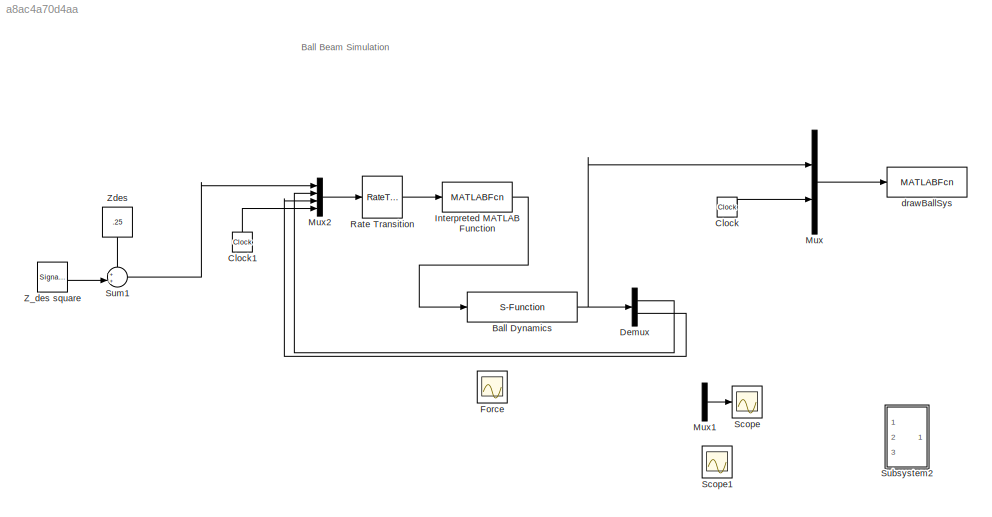
MODEL slx_a8ac4a70d4aa
KIND model
CONFIG AbsTol = auto
CONFIG EnableMultiTasking = on
CONFIG FixedStep = auto
CONFIG InitFcn = param
CONFIG MaxStep = auto
CONFIG MinStep = auto
CONFIG RelTol = 1e-3
CONFIG SampleTimeConstraint = Unconstrained
CONFIG Solver = ode45
CONFIG SolverName = ode45
CONFIG StartTime = 0.0
CONFIG StopTime = 1000
BLOCK [S-Function] Ball Dynamics
  EnableBusSupport = off
  FunctionName = ball_dynamics
  Parameters = P
  Ports = [1, 1]
  SFcnIsStateOwnerBlock = off
  SFunctionDeploymentMode = off
BLOCK [Clock] Clock
BLOCK [Clock] Clock1
BLOCK [Demux] Demux
  DisplayOption = bar
  Outputs = 2
  Ports = [1, 2]
BLOCK [Scope] Force
  NumInputPorts = 1
  Ports = [1]
  ScopeSpecificationString = Simulink.scopes.TimeScopeBlockCfg('CurrentConfiguration', extmgr.ConfigurationSet(extmgr.Configuration('Core','General UI',true),extmgr.Configuration('Core','Source UI',true),extmgr.Configuration('Sources','WiredSimulink',true,'DataLoggingVariableName','ScopeData1'),extmgr.Configuration('Visuals','Time Domain',true,'SerializedDisplays',{struct('MinYLimReal','-1.00000','MaxYLimReal','1.00000','YLab...<+1424ch>
BLOCK [MATLABFcn] Interpreted MATLAB Function
  MATLABFcn = ball_ctrl(u,P)
  OutputDimensions = 1
  Ports = [1, 1]
BLOCK [Mux] Mux
  DisplayOption = bar
  Inputs = 2
  Ports = [2, 1]
BLOCK [Mux] Mux1
  DisplayOption = bar
  Inputs = 2
  Ports = [2, 1]
BLOCK [Mux] Mux2
  DisplayOption = bar
  Ports = [4, 1]
BLOCK [RateTransition] Rate Transition
  OutPortSampleTime = P.Ts
BLOCK [Scope] Scope
  NumInputPorts = 1
  Ports = [1]
  ScopeSpecificationString = Simulink.scopes.TimeScopeBlockCfg('CurrentConfiguration', extmgr.ConfigurationSet(extmgr.Configuration('Core','General UI',true),extmgr.Configuration('Core','Source UI',true),extmgr.Configuration('Sources','WiredSimulink',true),extmgr.Configuration('Visuals','Time Domain',true,'SerializedDisplays',{struct('MinYLimReal','-0.03168','MaxYLimReal','0.2813','YLabelReal','','MinYLimMag','0.00000','MaxYL...<+1389ch>
BLOCK [Scope] Scope1
  NumInputPorts = 1
  Ports = [1]
  ScopeSpecificationString = Simulink.scopes.TimeScopeBlockCfg('CurrentConfiguration', extmgr.ConfigurationSet(extmgr.Configuration('Core','General UI',true),extmgr.Configuration('Core','Source UI',true),extmgr.Configuration('Sources','WiredSimulink',true,'DataLoggingVariableName','ScopeData1'),extmgr.Configuration('Visuals','Time Domain',true,'SerializedDisplays',{struct('MinYLimReal','-0.00056','MaxYLimReal','0.00123','YLab...<+1422ch>
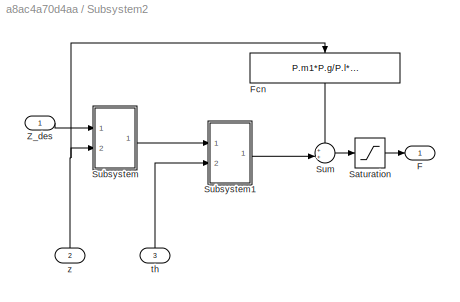
BLOCK [SubSystem] Subsystem2
  Ports = [3, 1]
  RequestExecContextInheritance = off
  Variant = off
BLOCK [Outport] Subsystem2/F
  IconDisplay = Port number
BLOCK [Fcn] Subsystem2/Fcn
  Expr = P.m1*P.g/P.l*u+P.m2*P.g/2
BLOCK [Saturate] Subsystem2/Saturation
  InputPortMap = u0
  LowerLimit = -15
  Ports = [1, 1]
  UpperLimit = 15
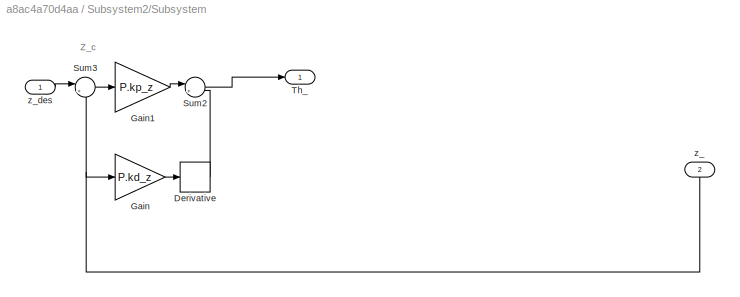
BLOCK [SubSystem] Subsystem2/Subsystem
  Ports = [2, 1]
  RequestExecContextInheritance = off
  Variant = off
BLOCK [Derivative] Subsystem2/Subsystem/Derivative
BLOCK [Gain] Subsystem2/Subsystem/Gain
  Gain = P.kd_z
  OutDataTypeStr = Inherit: Inherit via internal rule
  ParamDataTypeStr = Inherit: Inherit via internal rule
  SaturateOnIntegerOverflow = off
BLOCK [Gain] Subsystem2/Subsystem/Gain1
  Gain = P.kp_z
  OutDataTypeStr = Inherit: Inherit via internal rule
  ParamDataTypeStr = Inherit: Inherit via internal rule
  SaturateOnIntegerOverflow = off
BLOCK [Sum] Subsystem2/Subsystem/Sum2
  IconShape = round
  InputSameDT = off
  Inputs = |+-
  OutDataTypeStr = Inherit: Inherit via internal rule
  Ports = [2, 1]
  SaturateOnIntegerOverflow = off
BLOCK [Sum] Subsystem2/Subsystem/Sum3
  IconShape = round
  InputSameDT = off
  Inputs = |+-
  OutDataTypeStr = Inherit: Inherit via internal rule
  Ports = [2, 1]
  SaturateOnIntegerOverflow = off
BLOCK [Outport] Subsystem2/Subsystem/Th_
  IconDisplay = Port number
BLOCK [Inport] Subsystem2/Subsystem/z_
  IconDisplay = Port number
  Port = 2
BLOCK [Inport] Subsystem2/Subsystem/z_des
  IconDisplay = Port number
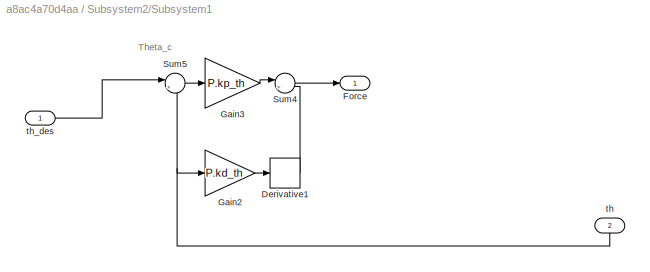
BLOCK [SubSystem] Subsystem2/Subsystem1
  Ports = [2, 1]
  RequestExecContextInheritance = off
  Variant = off
BLOCK [Derivative] Subsystem2/Subsystem1/Derivative1
BLOCK [Outport] Subsystem2/Subsystem1/Force
  IconDisplay = Port number
BLOCK [Gain] Subsystem2/Subsystem1/Gain2
  Gain = P.kd_th
  OutDataTypeStr = Inherit: Inherit via internal rule
  ParamDataTypeStr = Inherit: Inherit via internal rule
  SaturateOnIntegerOverflow = off
BLOCK [Gain] Subsystem2/Subsystem1/Gain3
  Gain = P.kp_th
  OutDataTypeStr = Inherit: Inherit via internal rule
  ParamDataTypeStr = Inherit: Inherit via internal rule
  SaturateOnIntegerOverflow = off
BLOCK [Sum] Subsystem2/Subsystem1/Sum4
  IconShape = round
  InputSameDT = off
  Inputs = |+-
  OutDataTypeStr = Inherit: Inherit via internal rule
  Ports = [2, 1]
  SaturateOnIntegerOverflow = off
BLOCK [Sum] Subsystem2/Subsystem1/Sum5
  IconShape = round
  InputSameDT = off
  Inputs = |+-
  OutDataTypeStr = Inherit: Inherit via internal rule
  Ports = [2, 1]
  SaturateOnIntegerOverflow = off
BLOCK [Inport] Subsystem2/Subsystem1/th
  IconDisplay = Port number
  Port = 2
BLOCK [Inport] Subsystem2/Subsystem1/th_des
  IconDisplay = Port number
BLOCK [Sum] Subsystem2/Sum
  IconShape = round
  InputSameDT = off
  Inputs = ++|
  OutDataTypeStr = Inherit: Inherit via internal rule
  Ports = [2, 1]
  SaturateOnIntegerOverflow = off
BLOCK [Inport] Subsystem2/Z_des
  IconDisplay = Port number
BLOCK [Inport] Subsystem2/th
  IconDisplay = Port number
  Port = 3
BLOCK [Inport] Subsystem2/z
  IconDisplay = Port number
  Port = 2
BLOCK [Sum] Sum1
  IconShape = round
  InputSameDT = off
  Inputs = ++|
  OutDataTypeStr = Inherit: Inherit via internal rule
  Ports = [2, 1]
  SaturateOnIntegerOverflow = off
BLOCK [SignalGenerator] Z_des square
  Amplitude = .15
  Commented = on
  Frequency = .01
  Ports = [0, 1]
  Units = rad/sec
  WaveForm = square
BLOCK [Constant] Zdes
  Value = .25
BLOCK [MATLABFcn] drawBallSys
  MATLABFcn = drawBallSys(u)
  OutputDimensions = 0
  Ports = [1]
  SampleTime = .5
ANNOTATION (root): Ball Beam Simulation
ANNOTATION Subsystem2/Subsystem: Z_c
ANNOTATION Subsystem2/Subsystem1: Theta_c
NET Ball Dynamics:1 -> Demux:1, Mux:1
LINE Clock1:1 -> Mux2:4
LINE Clock:1 -> Mux:2
LINE Demux:1 -> Mux2:2
LINE Demux:2 -> Mux2:3
LINE Interpreted MATLAB Function:1 -> Ball Dynamics:1
LINE Mux1:1 -> Scope:1
LINE Mux2:1 -> Rate Transition:1
LINE Mux:1 -> drawBallSys:1
LINE Rate Transition:1 -> Interpreted MATLAB Function:1
LINE Subsystem2/Fcn:1 -> Subsystem2/Sum:1
LINE Subsystem2/Saturation:1 -> Subsystem2/F:1
LINE Subsystem2/Subsystem/Derivative:1 -> Subsystem2/Subsystem/Sum2:2
LINE Subsystem2/Subsystem/Gain1:1 -> Subsystem2/Subsystem/Sum2:1
LINE Subsystem2/Subsystem/Gain:1 -> Subsystem2/Subsystem/Derivative:1
LINE Subsystem2/Subsystem/Sum2:1 -> Subsystem2/Subsystem/Th_:1
LINE Subsystem2/Subsystem/Sum3:1 -> Subsystem2/Subsystem/Gain1:1
NET Subsystem2/Subsystem/z_:1 -> Subsystem2/Subsystem/Gain:1, Subsystem2/Subsystem/Sum3:2
LINE Subsystem2/Subsystem/z_des:1 -> Subsystem2/Subsystem/Sum3:1
LINE Subsystem2/Subsystem1/Derivative1:1 -> Subsystem2/Subsystem1/Sum4:2
LINE Subsystem2/Subsystem1/Gain2:1 -> Subsystem2/Subsystem1/Derivative1:1
LINE Subsystem2/Subsystem1/Gain3:1 -> Subsystem2/Subsystem1/Sum4:1
LINE Subsystem2/Subsystem1/Sum4:1 -> Subsystem2/Subsystem1/Force:1
LINE Subsystem2/Subsystem1/Sum5:1 -> Subsystem2/Subsystem1/Gain3:1
NET Subsystem2/Subsystem1/th:1 -> Subsystem2/Subsystem1/Gain2:1, Subsystem2/Subsystem1/Sum5:2
LINE Subsystem2/Subsystem1/th_des:1 -> Subsystem2/Subsystem1/Sum5:1
LINE Subsystem2/Subsystem1:1 -> Subsystem2/Sum:2
LINE Subsystem2/Subsystem:1 -> Subsystem2/Subsystem1:1
LINE Subsystem2/Sum:1 -> Subsystem2/Saturation:1
LINE Subsystem2/Z_des:1 -> Subsystem2/Subsystem:1
LINE Subsystem2/th:1 -> Subsystem2/Subsystem1:2
NET Subsystem2/z:1 -> Subsystem2/Fcn:1, Subsystem2/Subsystem:2
LINE Sum1:1 -> Mux2:1
LINE Z_des square:1 -> Sum1:2
LINE Zdes:1 -> Sum1:1
note: NET lines group one-source signal fan-out (src -> all destinations, sorted); 1:1 wires keep LINE
